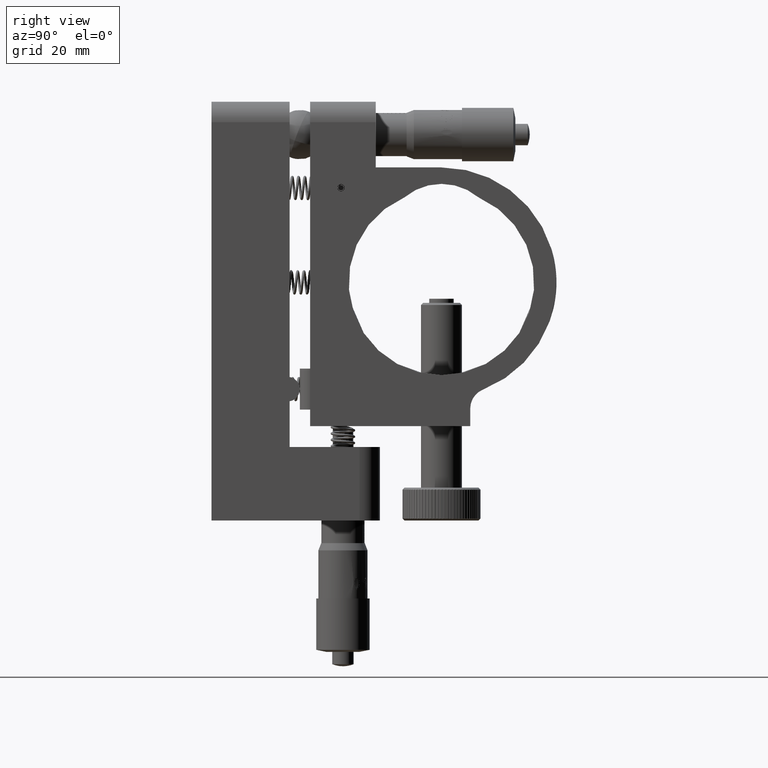
[diagram: clean part render]
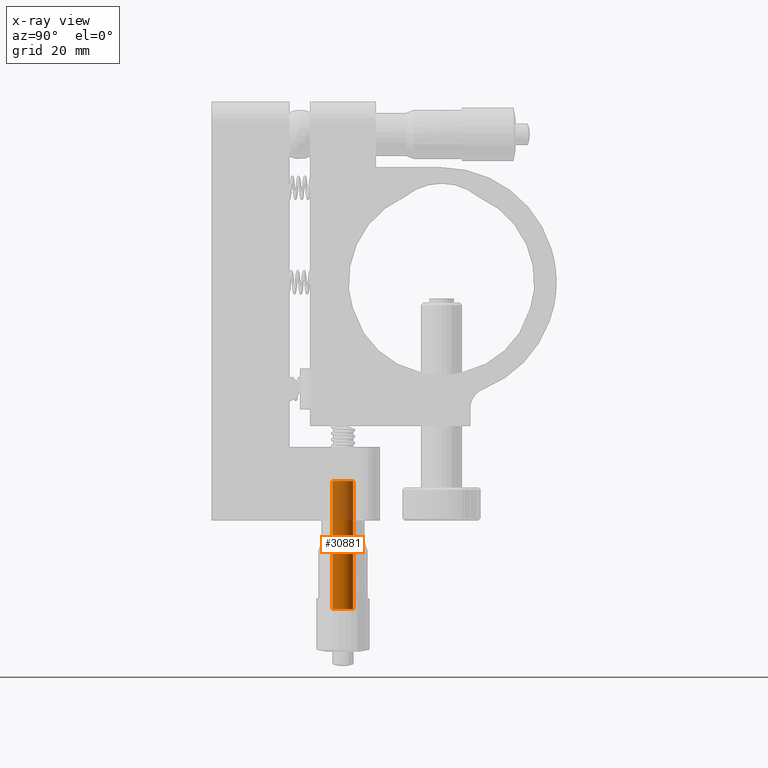
[diagram: x-ray — body ghosted, one internal face saturated and labeled with its STEP entity id]
A machine part, right view, then the same camera in x-ray: the body is ghosted and one INTERNAL B-rep face — a face not visible from any outside direction — is saturated and labeled: STEP entity #30881.
In plain terms, the highlighted cylindrical surface (edge-blend (fillet) strip) has radius 2.5 mm, axis along (-0, 0, 1).
Its self-contained STEP definition (entity closure, byte-faithful):
#1050 = DIRECTION ( 'NONE',  ( -4.331475902817747200E-026, 1.692413147233276000E-016, 1.000000000000000000 ) ) ;
#7685 = CARTESIAN_POINT ( 'NONE',  ( -28.99999999999998900, 32.00000000000005700, -79.60000000000002300 ) ) ;
#9737 = VERTEX_POINT ( 'NONE', #30044 ) ;
#12707 = DIRECTION ( 'NONE',  ( -0.02235200707116612200, 0.9997501626806022400, 0.0000000000000000000 ) ) ;
#13261 = ORIENTED_EDGE ( 'NONE', *, *, #73100, .T. ) ;
#14285 = CIRCLE ( 'NONE', #66283, 2.500000000000026200 ) ;
#14462 = CARTESIAN_POINT ( 'NONE',  ( -29.05588001767793200, 34.49937540670149600, -48.40000000000002000 ) ) ;
#14977 = DIRECTION ( 'NONE',  ( -0.02235200707116612200, 0.9997501626806022400, 0.0000000000000000000 ) ) ;
#17204 = CARTESIAN_POINT ( 'NONE',  ( -29.00000000000001400, 31.99999999999996400, -48.40000000000002000 ) ) ;
#17320 = ORIENTED_EDGE ( 'NONE', *, *, #26858, .T. ) ;
#23079 = CYLINDRICAL_SURFACE ( 'NONE', #65927, 2.500000000000026200 ) ;
#24641 = AXIS2_PLACEMENT_3D ( 'NONE', #47494, #54477, #12707 ) ;
#24996 = EDGE_CURVE ( 'NONE', #29380, #55649, #57017, .T. ) ;
#25417 = VECTOR ( 'NONE', #56987, 1000.000000000000000 ) ;
#26858 = EDGE_CURVE ( 'NONE', #59149, #55649, #14285, .T. ) ;
#27065 = EDGE_LOOP ( 'NONE', ( #49225, #13261, #17320, #59142 ) ) ;
#29380 = VERTEX_POINT ( 'NONE', #63155 ) ;
#30044 = CARTESIAN_POINT ( 'NONE',  ( -28.94411998232207100, 29.50062459329855400, -79.60000000000002300 ) ) ;
#30881 = ADVANCED_FACE ( 'NONE', ( #51447 ), #23079, .F. ) ;
#38447 = VECTOR ( 'NONE', #1050, 1000.000000000000000 ) ;
#45583 = DIRECTION ( 'NONE',  ( -4.331475902817747200E-026, 1.692413147233276000E-016, 1.000000000000000000 ) ) ;
#47494 = CARTESIAN_POINT ( 'NONE',  ( -28.99999999999998900, 32.00000000000005700, -79.60000000000002300 ) ) ;
#49225 = ORIENTED_EDGE ( 'NONE', *, *, #84038, .F. ) ;
#49599 = CIRCLE ( 'NONE', #24641, 2.500000000000026200 ) ;
#51447 = FACE_OUTER_BOUND ( 'NONE', #27065, .T. ) ;
#52592 = DIRECTION ( 'NONE',  ( -0.02235200707116612200, 0.9997501626806022400, 0.0000000000000000000 ) ) ;
#54477 = DIRECTION ( 'NONE',  ( -4.331475902817747200E-026, 1.692413147233276000E-016, 1.000000000000000000 ) ) ;
#55649 = VERTEX_POINT ( 'NONE', #14462 ) ;
#56987 = DIRECTION ( 'NONE',  ( -4.331475902817747200E-026, 1.692413147233276000E-016, 1.000000000000000000 ) ) ;
#57017 = LINE ( 'NONE', #84587, #38447 ) ;
#57030 = LINE ( 'NONE', #78052, #25417 ) ;
#59142 = ORIENTED_EDGE ( 'NONE', *, *, #24996, .F. ) ;
#59149 = VERTEX_POINT ( 'NONE', #71723 ) ;
#63155 = CARTESIAN_POINT ( 'NONE',  ( -29.05588001767790400, 34.49937540670158900, -79.60000000000002300 ) ) ;
#65927 = AXIS2_PLACEMENT_3D ( 'NONE', #7685, #84243, #14977 ) ;
#66283 = AXIS2_PLACEMENT_3D ( 'NONE', #17204, #45583, #52592 ) ;
#71723 = CARTESIAN_POINT ( 'NONE',  ( -28.94411998232207100, 29.50062459329846100, -48.40000000000002000 ) ) ;
#73100 = EDGE_CURVE ( 'NONE', #9737, #59149, #57030, .T. ) ;
#78052 = CARTESIAN_POINT ( 'NONE',  ( -28.94411998232207100, 29.50062459329852900, -79.60000000000002300 ) ) ;
#84038 = EDGE_CURVE ( 'NONE', #9737, #29380, #49599, .T. ) ;
#84243 = DIRECTION ( 'NONE',  ( -4.331475902817747200E-026, 1.692413147233276000E-016, 1.000000000000000000 ) ) ;
#84587 = CARTESIAN_POINT ( 'NONE',  ( -29.05588001767790400, 34.49937540670158900, -79.60000000000002300 ) ) ;